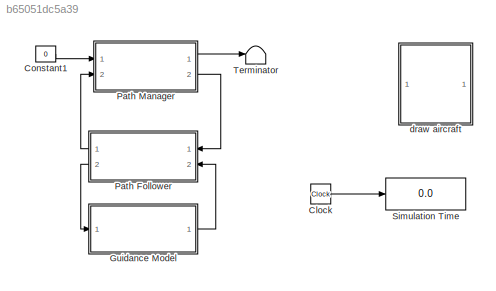
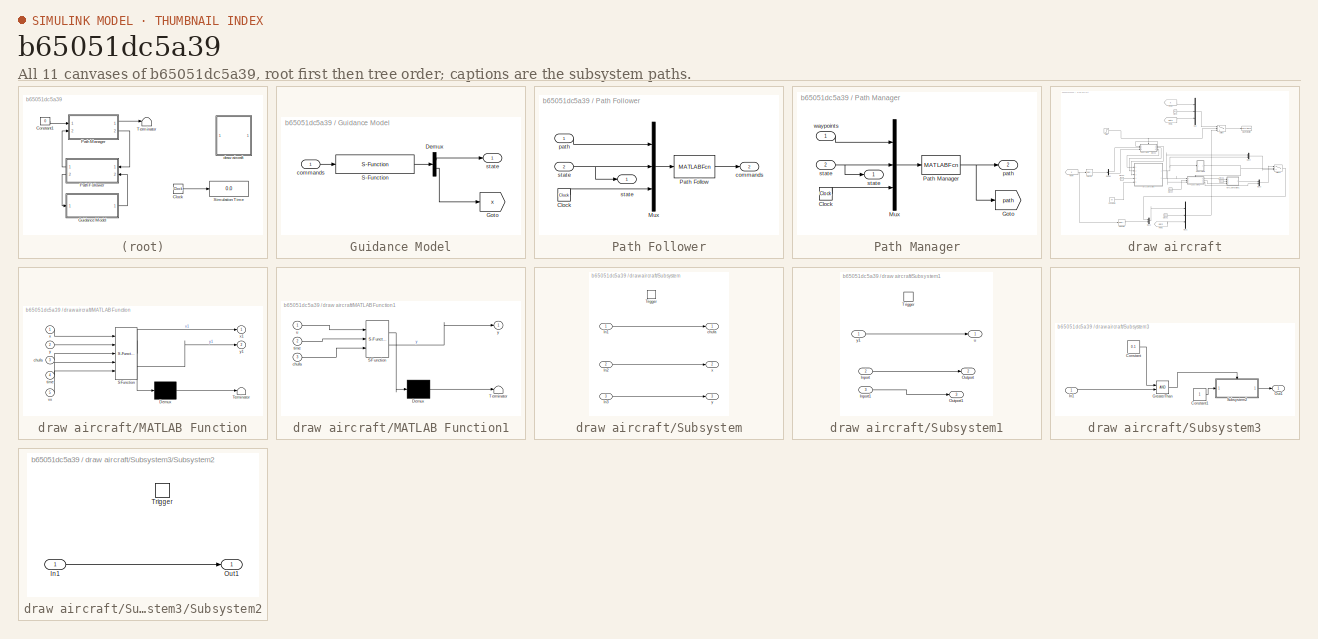
[diagram: thumbnail index - all 11 canvases of the model, root first then tree order]
MODEL slx_b65051dc5a39
KIND model
CONFIG AbsTol = auto
CONFIG EnableMultiTasking = on
CONFIG FixedStep = auto
CONFIG InitFcn = param_chap10
CONFIG MaxStep = auto
CONFIG MinStep = auto
CONFIG RelTol = 1e-3
CONFIG SampleTimeConstraint = Unconstrained
CONFIG SolverName = ode45
CONFIG StartTime = 0.0
CONFIG StopTime = 400
BLOCK [Clock] Clock
BLOCK [Constant] Constant1
  Value = 0
BLOCK [SubSystem] Guidance Model
  Ports = [1, 1]
  RequestExecContextInheritance = off
BLOCK [Demux] Guidance Model/Demux
  Outputs = [16;12]
  Ports = [1, 2]
BLOCK [Goto] Guidance Model/Goto
  GotoTag = x
  TagVisibility = global
BLOCK [S-Function] Guidance Model/S-Function
  EnableBusSupport = off
  FunctionName = guidance_model
  Parameters = P
  Ports = [1, 1]
  SFcnIsStateOwnerBlock = off
  SFunctionDeploymentMode = off
BLOCK [Inport] Guidance Model/commands
BLOCK [Outport] Guidance Model/state
BLOCK [SubSystem] Path Follower
  Ports = [2, 2]
  RequestExecContextInheritance = off
BLOCK [Clock] Path Follower/Clock
BLOCK [Mux] Path Follower/Mux
  DisplayOption = bar
  Inputs = 3
  Ports = [3, 1]
BLOCK [MATLABFcn] Path Follower/Path Follow
  MATLABFcn = path_follow(u,P)
  OutputDimensions = 3
  Ports = [1, 1]
  SampleTime = P.Ts
BLOCK [Outport] Path Follower/commands
  Port = 2
BLOCK [Inport] Path Follower/path
BLOCK [Inport] Path Follower/state
  Port = 2
BLOCK [Outport] Path Follower/state 
BLOCK [SubSystem] Path Manager
  Ports = [2, 2]
  RequestExecContextInheritance = off
BLOCK [Clock] Path Manager/Clock
BLOCK [Goto] Path Manager/Goto
  GotoTag = path
  TagVisibility = global
BLOCK [Mux] Path Manager/Mux
  DisplayOption = bar
  Inputs = 3
  Ports = [3, 1]
BLOCK [MATLABFcn] Path Manager/Path Manager
  MATLABFcn = path_manager_chap10(u)
  OutputDimensions = 13
  Ports = [1, 1]
  SampleTime = P.Ts
BLOCK [Outport] Path Manager/path
  Port = 2
BLOCK [Inport] Path Manager/state
  Port = 2
BLOCK [Outport] Path Manager/state 
BLOCK [Inport] Path Manager/waypoints
BLOCK [Display] Simulation Time
  Decimation = 1
  Ports = [1]
BLOCK [Terminator] Terminator
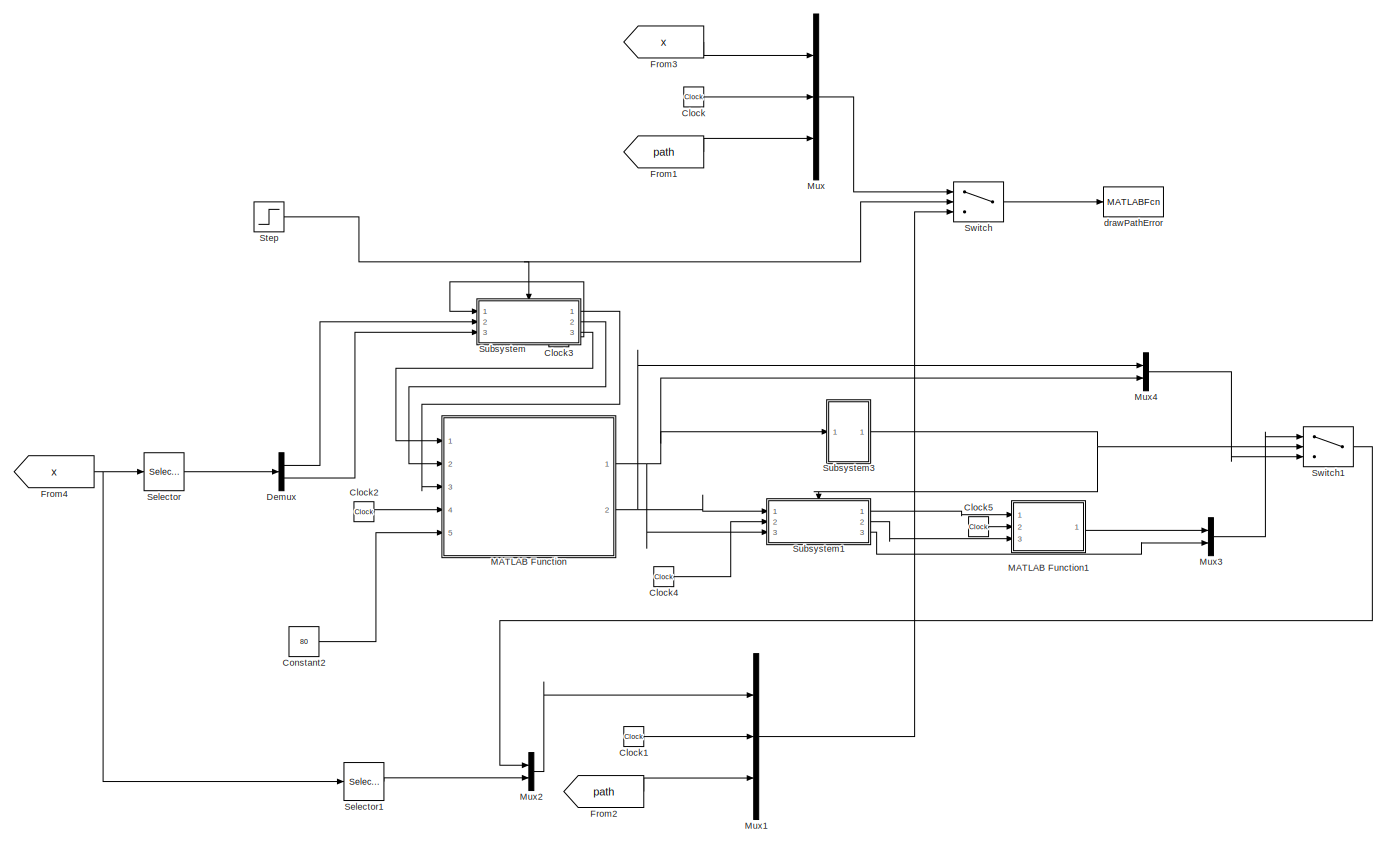
[diagram: draw aircraft - part 1/1, most of the canvas]
BLOCK [SubSystem] draw aircraft
  Ports = []
  RequestExecContextInheritance = off
BLOCK [Clock] draw aircraft/Clock
BLOCK [Clock] draw aircraft/Clock1
BLOCK [Clock] draw aircraft/Clock2
BLOCK [Clock] draw aircraft/Clock3
BLOCK [Clock] draw aircraft/Clock4
BLOCK [Clock] draw aircraft/Clock5
BLOCK [Constant] draw aircraft/Constant2
  Value = 80
BLOCK [Demux] draw aircraft/Demux
  Outputs = 2
  Ports = [1, 2]
BLOCK [From] draw aircraft/From1
  CloseFcn = tagdialog Close
  GotoTag = path
  TagVisibility = global
BLOCK [From] draw aircraft/From2
  CloseFcn = tagdialog Close
  GotoTag = path
  TagVisibility = global
BLOCK [From] draw aircraft/From3
  CloseFcn = tagdialog Close
  GotoTag = x
  TagVisibility = global
BLOCK [From] draw aircraft/From4
  CloseFcn = tagdialog Close
  GotoTag = x
  TagVisibility = global
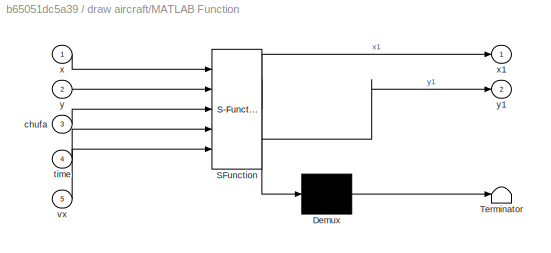
BLOCK [SubSystem] draw aircraft/MATLAB Function
  ErrorFcn = Stateflow.Translate.translate
  PermitHierarchicalResolution = ExplicitOnly
  Ports = [5, 2]
  RequestExecContextInheritance = off
  SFBlockType = MATLAB Function
  TreatAsAtomicUnit = on
BLOCK [Demux] draw aircraft/MATLAB Function/ Demux 
  Outputs = 1
  Ports = [1, 1]
BLOCK [S-Function] draw aircraft/MATLAB Function/ SFunction 
  EnableBusSupport = on
  FunctionName = sf_sfun
  PortCounts = [5 3]
  Ports = [5, 3]
  SFcnIsStateOwnerBlock = off
  SFunctionDeploymentMode = off
  Tag = Stateflow S-Function 2
BLOCK [Terminator] draw aircraft/MATLAB Function/ Terminator 
BLOCK [Inport] draw aircraft/MATLAB Function/chufa
  Port = 3
BLOCK [Inport] draw aircraft/MATLAB Function/time
  Port = 4
BLOCK [Inport] draw aircraft/MATLAB Function/vx
  Port = 5
BLOCK [Inport] draw aircraft/MATLAB Function/x
BLOCK [Outport] draw aircraft/MATLAB Function/x1
BLOCK [Inport] draw aircraft/MATLAB Function/y
  Port = 2
BLOCK [Outport] draw aircraft/MATLAB Function/y1
  Port = 2
BLOCK [SubSystem] draw aircraft/MATLAB Function1
  ErrorFcn = Stateflow.Translate.translate
  PermitHierarchicalResolution = ExplicitOnly
  Ports = [3, 1]
  RequestExecContextInheritance = off
  SFBlockType = MATLAB Function
  TreatAsAtomicUnit = on
BLOCK [Demux] draw aircraft/MATLAB Function1/ Demux 
  Outputs = 1
  Ports = [1, 1]
BLOCK [S-Function] draw aircraft/MATLAB Function1/ SFunction 
  EnableBusSupport = on
  FunctionName = sf_sfun
  PortCounts = [3 2]
  Ports = [3, 2]
  SFcnIsStateOwnerBlock = off
  SFunctionDeploymentMode = off
  Tag = Stateflow S-Function 1
BLOCK [Terminator] draw aircraft/MATLAB Function1/ Terminator 
BLOCK [Inport] draw aircraft/MATLAB Function1/chufa
  Port = 3
BLOCK [Inport] draw aircraft/MATLAB Function1/time
  Port = 2
BLOCK [Inport] draw aircraft/MATLAB Function1/u
BLOCK [Outport] draw aircraft/MATLAB Function1/y
BLOCK [Mux] draw aircraft/Mux
  DisplayOption = bar
  Inputs = 3
  Ports = [3, 1]
BLOCK [Mux] draw aircraft/Mux1
  DisplayOption = bar
  Inputs = 3
  Ports = [3, 1]
BLOCK [Mux] draw aircraft/Mux2
  DisplayOption = bar
  Inputs = 2
  Ports = [2, 1]
BLOCK [Mux] draw aircraft/Mux3
  DisplayOption = bar
  Inputs = 2
  Ports = [2, 1]
BLOCK [Mux] draw aircraft/Mux4
  DisplayOption = bar
  Inputs = 2
  Ports = [2, 1]
BLOCK [Selector] draw aircraft/Selector
  IndexOptions = Index vector (dialog)
  Indices = [1 2]
  InputPortWidth = 12
  OutputSizes = 1
  Ports = [1, 1]
BLOCK [Selector] draw aircraft/Selector1
  IndexOptions = Index vector (dialog)
  Indices = [3:12]
  InputPortWidth = 12
  OutputSizes = 1
  Ports = [1, 1]
BLOCK [Step] draw aircraft/Step
  After = 0
  Before = 1
  SampleTime = 0
  Time = 176
BLOCK [SubSystem] draw aircraft/Subsystem
  Ports = [3, 3, 0, 1]
  RequestExecContextInheritance = off
BLOCK [Inport] draw aircraft/Subsystem/In1
BLOCK [Inport] draw aircraft/Subsystem/In2
  Port = 2
BLOCK [Inport] draw aircraft/Subsystem/In3
  Port = 3
BLOCK [TriggerPort] draw aircraft/Subsystem/Trigger
  PortDimensions = 1
  Ports = []
  StatesWhenEnabling = held
  TriggerType = falling
  VariantControl = Variant
BLOCK [Outport] draw aircraft/Subsystem/chufa
BLOCK [Outport] draw aircraft/Subsystem/x
  Port = 2
BLOCK [Outport] draw aircraft/Subsystem/y
  Port = 3
BLOCK [SubSystem] draw aircraft/Subsystem1
  Ports = [3, 3, 0, 1]
  RequestExecContextInheritance = off
BLOCK [Inport] draw aircraft/Subsystem1/Inport
  Port = 2
BLOCK [Inport] draw aircraft/Subsystem1/Inport1
  Port = 3
BLOCK [Outport] draw aircraft/Subsystem1/Outport
  Port = 2
BLOCK [Outport] draw aircraft/Subsystem1/Outport1
  Port = 3
BLOCK [TriggerPort] draw aircraft/Subsystem1/Trigger
  PortDimensions = 1
  Ports = []
  StatesWhenEnabling = held
  VariantControl = Variant
BLOCK [Outport] draw aircraft/Subsystem1/u
BLOCK [Inport] draw aircraft/Subsystem1/y1
BLOCK [SubSystem] draw aircraft/Subsystem3
  Ports = [1, 1]
  RequestExecContextInheritance = off
BLOCK [Constant] draw aircraft/Subsystem3/Constant
  Value = 0.1
BLOCK [Constant] draw aircraft/Subsystem3/Constant1
BLOCK [RelationalOperator] draw aircraft/Subsystem3/GreaterThan
  InputSameDT = off
  OutDataTypeStr = boolean
  Ports = [2, 1]
  RndMeth = Simplest
BLOCK [Inport] draw aircraft/Subsystem3/In1
BLOCK [Outport] draw aircraft/Subsystem3/Out1
BLOCK [SubSystem] draw aircraft/Subsystem3/Subsystem2
  Ports = [1, 1, 0, 1]
  RequestExecContextInheritance = off
BLOCK [Inport] draw aircraft/Subsystem3/Subsystem2/In1
BLOCK [Outport] draw aircraft/Subsystem3/Subsystem2/Out1
BLOCK [TriggerPort] draw aircraft/Subsystem3/Subsystem2/Trigger
  PortDimensions = 1
  Ports = []
  StatesWhenEnabling = held
  VariantControl = Variant
BLOCK [Switch] draw aircraft/Switch
  Criteria = u2 > Threshold
  InputSameDT = off
  SaturateOnIntegerOverflow = off
BLOCK [Switch] draw aircraft/Switch1
  Criteria = u2 > Threshold
  InputSameDT = off
  SaturateOnIntegerOverflow = off
BLOCK [MATLABFcn] draw aircraft/drawPathError
  MATLABFcn = drawPathError(u)
  OutputDimensions = 0
  Ports = [1]
  SampleTime = 0.1
LINE Clock:1 -> Simulation Time:1
LINE Constant1:1 -> Path Manager:1
LINE Guidance Model/Demux:1 -> Guidance Model/state:1
LINE Guidance Model/Demux:2 -> Guidance Model/Goto:1
LINE Guidance Model/S-Function:1 -> Guidance Model/Demux:1
LINE Guidance Model/commands:1 -> Guidance Model/S-Function:1
LINE Guidance Model:1 -> Path Follower:2
LINE Path Follower/Clock:1 -> Path Follower/Mux:3
LINE Path Follower/Mux:1 -> Path Follower/Path Follow:1
LINE Path Follower/Path Follow:1 -> Path Follower/commands:1
LINE Path Follower/path:1 -> Path Follower/Mux:1
NET Path Follower/state:1 -> Path Follower/Mux:2, Path Follower/state :1
LINE Path Follower:1 -> Path Manager:2
LINE Path Follower:2 -> Guidance Model:1
LINE Path Manager/Clock:1 -> Path Manager/Mux:3
LINE Path Manager/Mux:1 -> Path Manager/Path Manager:1
NET Path Manager/Path Manager:1 -> Path Manager/Goto:1, Path Manager/path:1
NET Path Manager/state:1 -> Path Manager/Mux:2, Path Manager/state :1
LINE Path Manager/waypoints:1 -> Path Manager/Mux:1
LINE Path Manager:1 -> Terminator:1
LINE Path Manager:2 -> Path Follower:1
LINE draw aircraft/Clock1:1 -> draw aircraft/Mux1:2
LINE draw aircraft/Clock2:1 -> draw aircraft/MATLAB Function:4
LINE draw aircraft/Clock3:1 -> draw aircraft/Subsystem:1
LINE draw aircraft/Clock4:1 -> draw aircraft/Subsystem1:2
LINE draw aircraft/Clock5:1 -> draw aircraft/MATLAB Function1:2
LINE draw aircraft/Clock:1 -> draw aircraft/Mux:2
LINE draw aircraft/Constant2:1 -> draw aircraft/MATLAB Function:5
LINE draw aircraft/Demux:1 -> draw aircraft/Subsystem:2
LINE draw aircraft/Demux:2 -> draw aircraft/Subsystem:3
LINE draw aircraft/From1:1 -> draw aircraft/Mux:3
LINE draw aircraft/From2:1 -> draw aircraft/Mux1:3
LINE draw aircraft/From3:1 -> draw aircraft/Mux:1
NET draw aircraft/From4:1 -> draw aircraft/Selector1:1, draw aircraft/Selector:1
LINE draw aircraft/MATLAB Function1:1 -> draw aircraft/Mux3:1
NET draw aircraft/MATLAB Function:1 -> draw aircraft/Mux4:2, draw aircraft/Subsystem1:3, draw aircraft/Subsystem3:1
NET draw aircraft/MATLAB Function:2 -> draw aircraft/Mux4:1, draw aircraft/Subsystem1:1
LINE draw aircraft/Mux1:1 -> draw aircraft/Switch:3
LINE draw aircraft/Mux2:1 -> draw aircraft/Mux1:1
LINE draw aircraft/Mux3:1 -> draw aircraft/Switch1:1
LINE draw aircraft/Mux4:1 -> draw aircraft/Switch1:3
LINE draw aircraft/Mux:1 -> draw aircraft/Switch:1
LINE draw aircraft/Selector1:1 -> draw aircraft/Mux2:2
LINE draw aircraft/Selector:1 -> draw aircraft/Demux:1
NET draw aircraft/Step:1 -> draw aircraft/Subsystem:trigger, draw aircraft/Switch:2
LINE draw aircraft/Subsystem/In1:1 -> draw aircraft/Subsystem/chufa:1
LINE draw aircraft/Subsystem/In2:1 -> draw aircraft/Subsystem/x:1
LINE draw aircraft/Subsystem/In3:1 -> draw aircraft/Subsystem/y:1
LINE draw aircraft/Subsystem1/Inport1:1 -> draw aircraft/Subsystem1/Outport1:1
LINE draw aircraft/Subsystem1/Inport:1 -> draw aircraft/Subsystem1/Outport:1
LINE draw aircraft/Subsystem1/y1:1 -> draw aircraft/Subsystem1/u:1
LINE draw aircraft/Subsystem1:1 -> draw aircraft/MATLAB Function1:1
LINE draw aircraft/Subsystem1:2 -> draw aircraft/MATLAB Function1:3
LINE draw aircraft/Subsystem1:3 -> draw aircraft/Mux3:2
LINE draw aircraft/Subsystem3/Constant1:1 -> draw aircraft/Subsystem3/Subsystem2:1
LINE draw aircraft/Subsystem3/Constant:1 -> draw aircraft/Subsystem3/GreaterThan:1
LINE draw aircraft/Subsystem3/GreaterThan:1 -> draw aircraft/Subsystem3/Subsystem2:trigger
LINE draw aircraft/Subsystem3/In1:1 -> draw aircraft/Subsystem3/GreaterThan:2
LINE draw aircraft/Subsystem3/Subsystem2/In1:1 -> draw aircraft/Subsystem3/Subsystem2/Out1:1
LINE draw aircraft/Subsystem3/Subsystem2:1 -> draw aircraft/Subsystem3/Out1:1
NET draw aircraft/Subsystem3:1 -> draw aircraft/Subsystem1:trigger, draw aircraft/Switch1:2
LINE draw aircraft/Subsystem:1 -> draw aircraft/MATLAB Function:3
LINE draw aircraft/Subsystem:2 -> draw aircraft/MATLAB Function:2
LINE draw aircraft/Subsystem:3 -> draw aircraft/MATLAB Function:1
LINE draw aircraft/Switch1:1 -> draw aircraft/Mux2:1
LINE draw aircraft/Switch:1 -> draw aircraft/drawPathError:1
note: NET lines group one-source signal fan-out (src -> all destinations, sorted); 1:1 wires keep LINE
CHART draw aircraft/MATLAB Function1 states=1 transitions=1
  STATE_LABEL 'eML_blk_kernel()'
  STATE_LABEL 'SCRIPT:\nfunction y = fcn(u,time,chufa)\n\ny = u + 40*(time - chufa);\n'
CHART draw aircraft/MATLAB Function states=1 transitions=1
  STATE_LABEL 'eML_blk_kernel()'
  STATE_LABEL 'SCRIPT:\nfunction [x1,y1] = tuning2landing(x,y,chufa,time,vx)\nangle = atan(-x/y);\ntheta = pi/2 - angle;\nAB = 800*(-x/y);\nr = AB * tan(theta/2);\nOx1 = r;\nOy1 = Ox1* y/x;\nw = vx / r;\nt = time-chufa;\nangle1 = angle-pi/2 - w*t;\nx1 = Ox1 + r*cos(angle1);\ny1 = Oy1 + r*sin(angle1);\n\n\nend\n'
CHART  states=0 transitions=0
CHART  states=0 transitions=0
